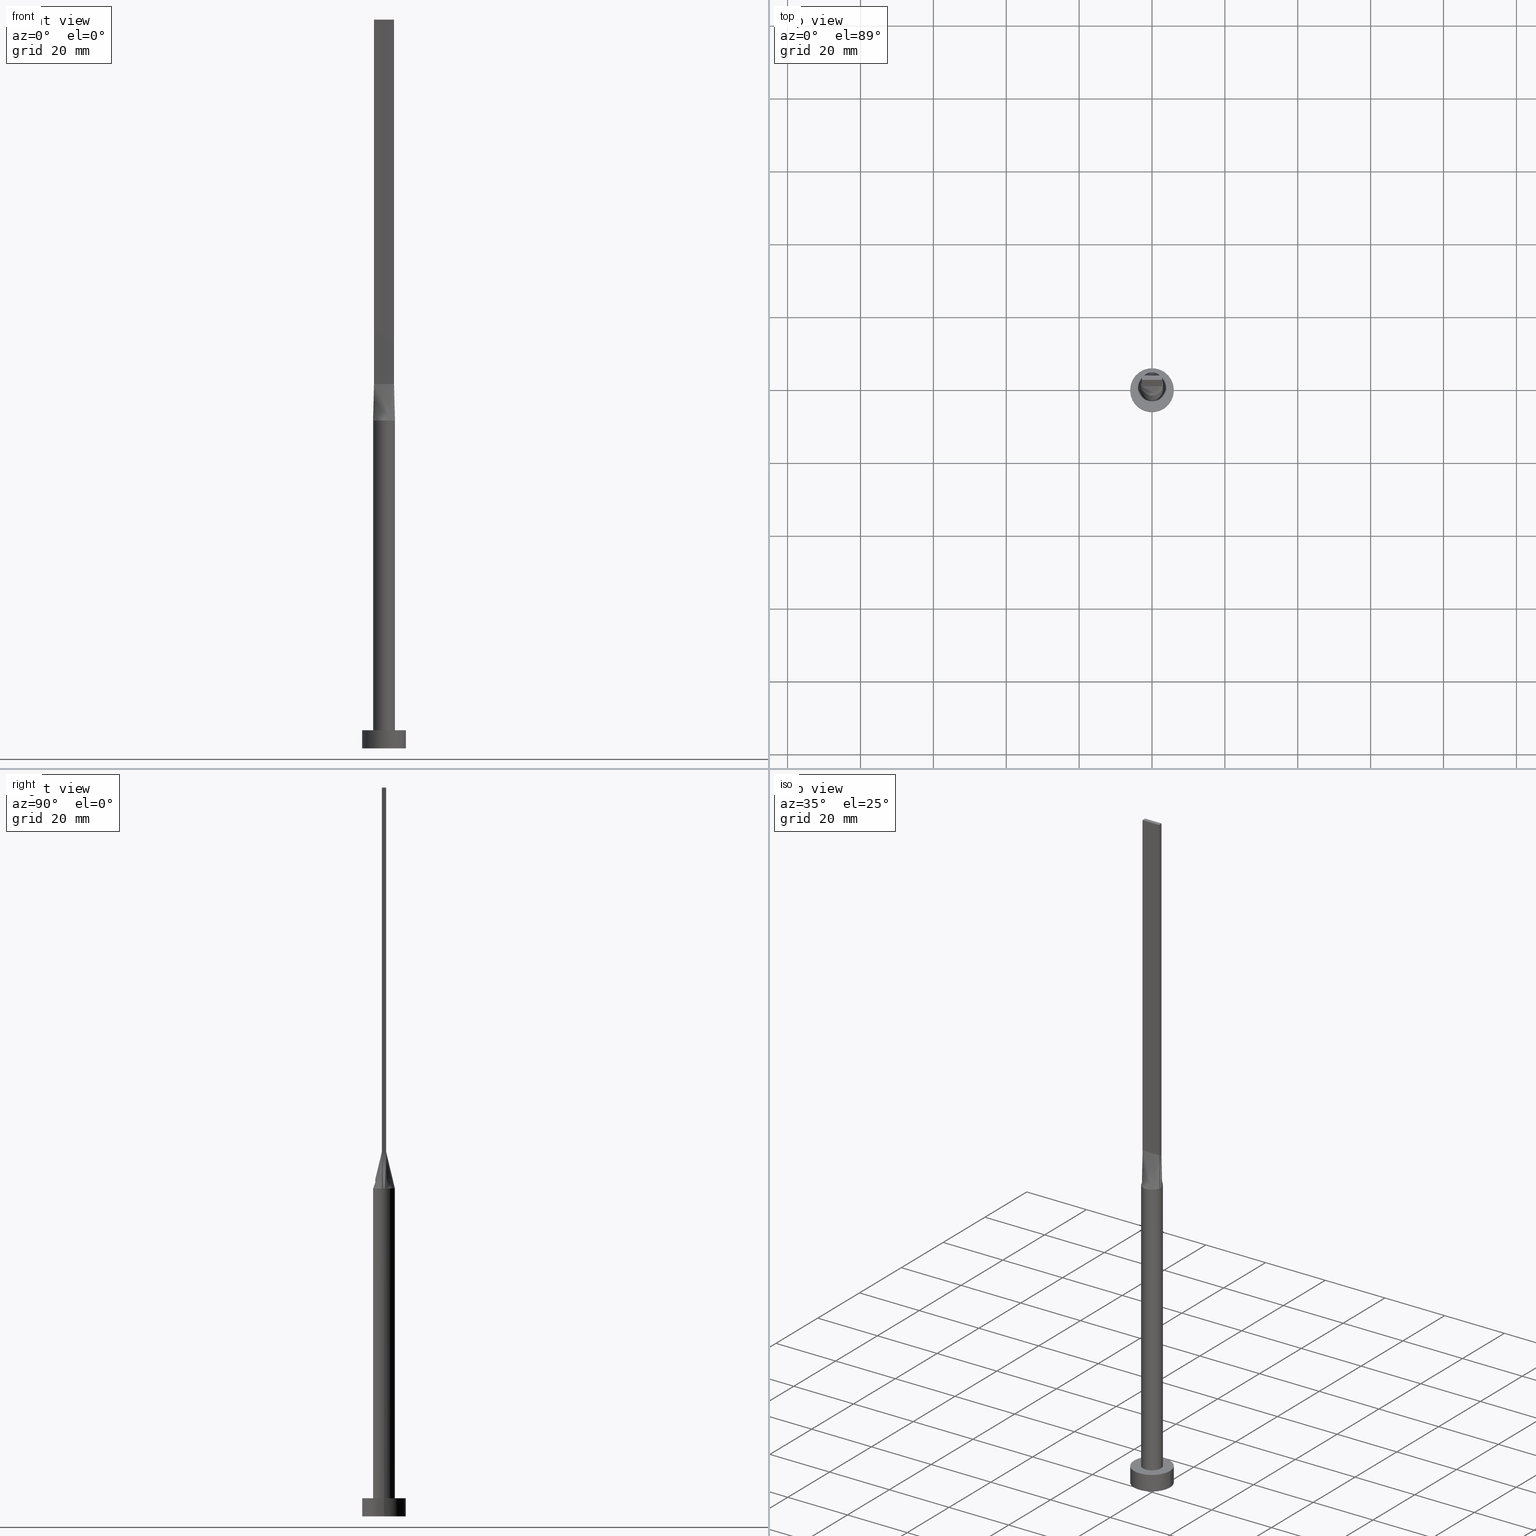
[diagram: canonical four-view strip — front | top / right | iso, engineering-drawing reading convention]
A machine part, canonical four-view strip (front | top / right | iso — engineering-drawing reading convention). The complete STEP part file that produces these views, byte-faithful:
ISO-10303-21;
HEADER;
FILE_DESCRIPTION (( 'STEP AP203' ),
    '1' );
FILE_NAME ('0f43.STEP',
    '2023-02-13T10:29:06',
    ( '' ),
    ( '' ),
    'SwSTEP 2.0',
    'SolidWorks 2019',
    '' );
FILE_SCHEMA (( 'CONFIG_CONTROL_DESIGN' ));
ENDSEC;

DATA;
#1 = CARTESIAN_POINT ( 'NONE',  ( -2.520833333333333037, -0.5999999999999994227, 100.0000000000000000 ) ) ;
#2 = CARTESIAN_POINT ( 'NONE',  ( -2.750000000000000000, -0.5999999999999995337, 100.0000000000000000 ) ) ;
#3 = EDGE_LOOP ( 'NONE', ( #144, #540, #375, #120 ) ) ;
#4 = VECTOR ( 'NONE', #331, 1000.000000000000000 ) ;
#5 = CARTESIAN_POINT ( 'NONE',  ( 0.2291666666666671015, 0.6000000000000001998, 100.0000000000000142 ) ) ;
#6 = DATE_AND_TIME ( #541, #19 ) ;
#7 = LINE ( 'NONE', #491, #161 ) ;
#8 = FACE_OUTER_BOUND ( 'NONE', #187, .T. ) ;
#9 = VECTOR ( 'NONE', #328, 1000.000000000000000 ) ;
#10 = ORIENTED_EDGE ( 'NONE', *, *, #242, .T. ) ;
#11 = CC_DESIGN_PERSON_AND_ORGANIZATION_ASSIGNMENT ( #232, #484, ( #250 ) ) ;
#12 = CARTESIAN_POINT ( 'NONE',  ( 0.000000000000000000, 0.000000000000000000, 5.000000000000000000 ) ) ;
#13 = DATE_AND_TIME ( #496, #413 ) ;
#14 = CARTESIAN_POINT ( 'NONE',  ( 2.750000000000000000, 0.4000000000000025757, 100.0000000000000000 ) ) ;
#15 = DIRECTION ( 'NONE',  ( 0.000000000000000000, -1.000000000000000000, 0.000000000000000000 ) ) ;
#16 = PERSON_AND_ORGANIZATION ( #534, #480 ) ;
#17 = VECTOR ( 'NONE', #195, 1000.000000000000000 ) ;
#18 = CARTESIAN_POINT ( 'NONE',  ( 2.750000000000000000, 0.6000000000000001998, 100.0000000000000000 ) ) ;
#19 = LOCAL_TIME ( 11, 29, 6.000000000000000000, #274 ) ;
#20 = EDGE_CURVE ( 'NONE', #503, #183, #210, .T. ) ;
#21 = ORIENTED_EDGE ( 'NONE', *, *, #40, .F. ) ;
#22 = EDGE_LOOP ( 'NONE', ( #205, #30, #518, #290 ) ) ;
#23 = DIRECTION ( 'NONE',  ( 0.000000000000000000, 0.000000000000000000, 1.000000000000000000 ) ) ;
#24 = CARTESIAN_POINT ( 'NONE',  ( 2.931047284229977290, -0.6395012256501766412, 90.00000000000001421 ) ) ;
#25 = DIRECTION ( 'NONE',  ( 0.000000000000000000, 0.000000000000000000, 1.000000000000000000 ) ) ;
#26 = EDGE_CURVE ( 'NONE', #503, #101, #431, .T. ) ;
#27 = CARTESIAN_POINT ( 'NONE',  ( 1.829136458871247761, 2.402980488111650992, 89.99999999999997158 ) ) ;
#28 = VECTOR ( 'NONE', #251, 1000.000000000000000 ) ;
#29 = CARTESIAN_POINT ( 'NONE',  ( -2.792624347712117761, 1.135030881087315313, 90.00000000000001421 ) ) ;
#30 = ORIENTED_EDGE ( 'NONE', *, *, #287, .F. ) ;
#31 = CARTESIAN_POINT ( 'NONE',  ( -2.750000000000000000, -0.5999999999999994227, 200.0000000000000000 ) ) ;
#32 = CYLINDRICAL_SURFACE ( 'NONE', #309, 3.000000000000000444 ) ;
#33 = DIRECTION ( 'NONE',  ( 0.01810162078030959007, -0.003949444533885576245, 0.9998283518749604415 ) ) ;
#34 = FACE_OUTER_BOUND ( 'NONE', #343, .T. ) ;
#35 = CARTESIAN_POINT ( 'NONE',  ( 2.518011668798964209, 1.657305971825549840, 90.00000000000001421 ) ) ;
#36 = CARTESIAN_POINT ( 'NONE',  ( 2.750000000000000000, 0.6000000000000001998, 200.0000000000000000 ) ) ;
#37 = CARTESIAN_POINT ( 'NONE',  ( -2.750000000000000000, -0.5999999999999994227, 200.0000000000000000 ) ) ;
#38 = ORIENTED_EDGE ( 'NONE', *, *, #254, .T. ) ;
#39 = CARTESIAN_POINT ( 'NONE',  ( 1.829136458871247761, 2.402980488111650992, 89.99999999999997158 ) ) ;
#40 = EDGE_CURVE ( 'NONE', #101, #460, #168, .T. ) ;
#41 = CARTESIAN_POINT ( 'NONE',  ( 2.931332910560268790, -0.6395638358681950963, 90.00000000000001421 ) ) ;
#42 = CC_DESIGN_PERSON_AND_ORGANIZATION_ASSIGNMENT ( #169, #352, ( #425 ) ) ;
#43 = AXIS2_PLACEMENT_3D ( 'NONE', #122, #478, #298 ) ;
#44 = PLANE ( 'NONE',  #260 ) ;
#45 = CALENDAR_DATE ( 2023, 13, 2 ) ;
#46 = PRODUCT ( '0f43', '0f43', '', ( #77 ) ) ;
#47 = DATE_TIME_ROLE ( 'classification_date' ) ;
#48 = CARTESIAN_POINT ( 'NONE',  ( 0.000000000000000000, 0.000000000000000000, 90.00000000000001421 ) ) ;
#49 = CARTESIAN_POINT ( 'NONE',  ( -2.931047284229977734, -0.6395012256501755310, 90.00000000000001421 ) ) ;
#50 = DIRECTION ( 'NONE',  ( -0.000000000000000000, -0.000000000000000000, -1.000000000000000000 ) ) ;
#51 = CARTESIAN_POINT ( 'NONE',  ( -2.750000000000000000, 0.6000000000000001998, 100.0000000000000000 ) ) ;
#52 = CARTESIAN_POINT ( 'NONE',  ( 3.000000000000000444, 3.673940397442060361E-16, 90.00000000000001421 ) ) ;
#53 = CARTESIAN_POINT ( 'NONE',  ( -2.518011668798964653, -1.657305971825550062, 90.00000000000000000 ) ) ;
#54 = APPROVAL_DATE_TIME ( #6, #497 ) ;
#55 = B_SPLINE_SURFACE_WITH_KNOTS ( 'NONE', 3, 1, ( 
 ( #350, #131 ),
 ( #81, #167 ),
 ( #529, #130 ),
 ( #262, #430 ),
 ( #359, #392 ),
 ( #206, #2 ) ),
 .UNSPECIFIED., .F., .F., .F.,
 ( 4, 2, 4 ),
 ( 2, 2 ),
 ( 0.000000000000000000, 0.5000000000000000000, 1.000000000000000000 ),
 ( 0.000000000000000000, 1.000000000000000000 ),
 .UNSPECIFIED. ) ;
#56 = EDGE_CURVE ( 'NONE', #305, #183, #492, .T. ) ;
#57 = CARTESIAN_POINT ( 'NONE',  ( 0.9166666666666669627, -0.5999999999999996447, 100.0000000000000000 ) ) ;
#58 = VERTEX_POINT ( 'NONE', #351 ) ;
#59 = APPLICATION_CONTEXT ( 'configuration controlled 3d designs of mechanical parts and assemblies' ) ;
#60 = AXIS2_PLACEMENT_3D ( 'NONE', #203, #384, #426 ) ;
#61 = AXIS2_PLACEMENT_3D ( 'NONE', #151, #520, #297 ) ;
#62 = VERTEX_POINT ( 'NONE', #41 ) ;
#63 =( NAMED_UNIT ( * ) SI_UNIT ( $, .STERADIAN. ) SOLID_ANGLE_UNIT ( ) );
#64 = CARTESIAN_POINT ( 'NONE',  ( 1.829136458871248205, -2.402980488111650992, 90.00000000000002842 ) ) ;
#65 = ORIENTED_EDGE ( 'NONE', *, *, #379, .T. ) ;
#66 = ADVANCED_FACE ( 'NONE', ( #573 ), #44, .F. ) ;
#67 = CARTESIAN_POINT ( 'NONE',  ( 0.000000000000000000, 0.000000000000000000, 5.000000000000000000 ) ) ;
#68 = VERTEX_POINT ( 'NONE', #300 ) ;
#69 = VECTOR ( 'NONE', #416, 1000.000000000000000 ) ;
#70 = PLANE ( 'NONE',  #302 ) ;
#71 = ORIENTED_EDGE ( 'NONE', *, *, #348, .F. ) ;
#72 = EDGE_LOOP ( 'NONE', ( #91, #533, #155, #402, #454, #118 ) ) ;
#73 = LINE ( 'NONE', #200, #4 ) ;
#74 = CARTESIAN_POINT ( 'NONE',  ( -2.328745122427008152, 1.922758842442225280, 89.99999999999997158 ) ) ;
#75 = DIRECTION ( 'NONE',  ( -0.01810162078030963170, -0.003949444533885608337, 0.9998283518749604415 ) ) ;
#76 = DIRECTION ( 'NONE',  ( 1.000000000000000000, 0.000000000000000000, 0.000000000000000000 ) ) ;
#77 = MECHANICAL_CONTEXT ( 'NONE', #98, 'mechanical' ) ;
#78 = DIRECTION ( 'NONE',  ( -1.000000000000000000, 0.000000000000000000, 0.000000000000000000 ) ) ;
#79 = ORIENTED_EDGE ( 'NONE', *, *, #417, .F. ) ;
#80 = ADVANCED_FACE ( 'NONE', ( #405 ), #577, .T. ) ;
#81 = CARTESIAN_POINT ( 'NONE',  ( -2.976487486186430331, 0.4312336333497662211, 90.00000000000001421 ) ) ;
#82 = APPLICATION_PROTOCOL_DEFINITION ( 'international standard', 'config_control_design', 1994, #59 ) ;
#83 = DIRECTION ( 'NONE',  ( 0.000000000000000000, 0.000000000000000000, 1.000000000000000000 ) ) ;
#84 = ORIENTED_EDGE ( 'NONE', *, *, #193, .F. ) ;
#85 = CARTESIAN_POINT ( 'NONE',  ( -1.829136458871247761, 2.402980488111649660, 89.99999999999998579 ) ) ;
#86 = VECTOR ( 'NONE', #255, 1000.000000000000000 ) ;
#87 = CARTESIAN_POINT ( 'NONE',  ( 6.000000000000000888, 7.347880794884120722E-16, 5.000000000000000000 ) ) ;
#88 = VERTEX_POINT ( 'NONE', #565 ) ;
#89 = CARTESIAN_POINT ( 'NONE',  ( 0.8041209001220689379, 2.916015559847871863, 90.00000000000004263 ) ) ;
#90 = PERSON_AND_ORGANIZATION_ROLE ( 'classification_officer' ) ;
#91 = ORIENTED_EDGE ( 'NONE', *, *, #566, .F. ) ;
#92 = DIRECTION ( 'NONE',  ( -1.000000000000000000, 0.000000000000000000, 0.000000000000000000 ) ) ;
#93 = VECTOR ( 'NONE', #33, 1000.000000000000000 ) ;
#94 = PLANE ( 'NONE',  #468 ) ;
#95 = CARTESIAN_POINT ( 'NONE',  ( -2.931047284229977290, 0.6395012256501755310, 90.00000000000001421 ) ) ;
#96 = CARTESIAN_POINT ( 'NONE',  ( -1.604166666666665408, -0.5999999999999994227, 100.0000000000000000 ) ) ;
#97 = APPROVAL_DATE_TIME ( #13, #401 ) ;
#98 = APPLICATION_CONTEXT ( 'configuration controlled 3d designs of mechanical parts and assemblies' ) ;
#99 = EDGE_CURVE ( 'NONE', #221, #544, #455, .T. ) ;
#100 = CARTESIAN_POINT ( 'NONE',  ( 1.145833333333333481, -0.5999999999999996447, 100.0000000000000000 ) ) ;
#101 = VERTEX_POINT ( 'NONE', #31 ) ;
#102 = DATE_AND_TIME ( #501, #499 ) ;
#103 = AXIS2_PLACEMENT_3D ( 'NONE', #112, #154, #145 ) ;
#104 = CARTESIAN_POINT ( 'NONE',  ( 2.520833333333333037, -0.5999999999999996447, 100.0000000000000000 ) ) ;
#105 = ORIENTED_EDGE ( 'NONE', *, *, #417, .T. ) ;
#106 = FACE_OUTER_BOUND ( 'NONE', #418, .T. ) ;
#107 = CIRCLE ( 'NONE', #551, 3.000000000000000444 ) ;
#108 = ORIENTED_EDGE ( 'NONE', *, *, #345, .F. ) ;
#109 = APPROVAL ( #128, 'NEUR�EN�' ) ;
#110 = FACE_OUTER_BOUND ( 'NONE', #184, .T. ) ;
#111 = ORIENTED_EDGE ( 'NONE', *, *, #362, .F. ) ;
#112 = CARTESIAN_POINT ( 'NONE',  ( 0.000000000000000000, 0.000000000000000000, 90.00000000000001421 ) ) ;
#113 = DIRECTION ( 'NONE',  ( 1.000000000000000000, 0.000000000000000000, 0.000000000000000000 ) ) ;
#114 = ORIENTED_EDGE ( 'NONE', *, *, #566, .T. ) ;
#115 = APPROVAL_PERSON_ORGANIZATION ( #434, #401, #269 ) ;
#116 = ADVANCED_FACE ( 'NONE', ( #149, #246 ), #70, .T. ) ;
#117 = CARTESIAN_POINT ( 'NONE',  ( -1.517787371616671654, 2.616501225271827380, 90.00000000000004263 ) ) ;
#118 = ORIENTED_EDGE ( 'NONE', *, *, #227, .T. ) ;
#119 = LINE ( 'NONE', #383, #560 ) ;
#120 = ORIENTED_EDGE ( 'NONE', *, *, #461, .T. ) ;
#121 = CIRCLE ( 'NONE', #429, 6.000000000000000888 ) ;
#122 = CARTESIAN_POINT ( 'NONE',  ( 0.000000000000000000, 0.000000000000000000, 200.0000000000000000 ) ) ;
#123 = CYLINDRICAL_SURFACE ( 'NONE', #60, 6.000000000000000888 ) ;
#124 = CARTESIAN_POINT ( 'NONE',  ( -2.750000000000000000, -0.5999999999999994227, 200.0000000000000000 ) ) ;
#125 = PERSON_AND_ORGANIZATION ( #534, #480 ) ;
#126 = DIRECTION ( 'NONE',  ( -1.000000000000000000, 0.000000000000000000, 0.000000000000000000 ) ) ;
#127 = CARTESIAN_POINT ( 'NONE',  ( 0.000000000000000000, 0.000000000000000000, 0.000000000000000000 ) ) ;
#128 = APPROVAL_STATUS ( 'not_yet_approved' ) ;
#129 = CARTESIAN_POINT ( 'NONE',  ( 2.792624347712116872, 1.135030881087315979, 90.00000000000001421 ) ) ;
#130 = CARTESIAN_POINT ( 'NONE',  ( -2.750000000000000000, 0.1999999999999964306, 100.0000000000000000 ) ) ;
#131 = CARTESIAN_POINT ( 'NONE',  ( -2.750000000000000000, 0.6000000000000001998, 100.0000000000000000 ) ) ;
#132 = DIRECTION ( 'NONE',  ( 1.000000000000000000, -5.913830031739115543E-17, 0.000000000000000000 ) ) ;
#133 = ORIENTED_EDGE ( 'NONE', *, *, #196, .F. ) ;
#134 = CYLINDRICAL_SURFACE ( 'NONE', #334, 3.000000000000000444 ) ;
#135 = CARTESIAN_POINT ( 'NONE',  ( -0.9166666666666661856, 0.6000000000000000888, 100.0000000000000000 ) ) ;
#136 = EDGE_CURVE ( 'NONE', #221, #68, #335, .T. ) ;
#137 = CARTESIAN_POINT ( 'NONE',  ( -1.833333333333332149, -0.5999999999999994227, 100.0000000000000000 ) ) ;
#138 = CARTESIAN_POINT ( 'NONE',  ( -1.829136458871248427, -2.402980488111649660, 90.00000000000000000 ) ) ;
#139 = ORIENTED_EDGE ( 'NONE', *, *, #510, .F. ) ;
#140 = PERSON_AND_ORGANIZATION ( #534, #480 ) ;
#141 = CARTESIAN_POINT ( 'NONE',  ( 0.000000000000000000, 0.000000000000000000, 90.00000000000001421 ) ) ;
#142 = ORIENTED_EDGE ( 'NONE', *, *, #379, .F. ) ;
#143 = CARTESIAN_POINT ( 'NONE',  ( 2.750000000000000000, 0.2000000000000038136, 100.0000000000000000 ) ) ;
#144 = ORIENTED_EDGE ( 'NONE', *, *, #282, .T. ) ;
#145 = DIRECTION ( 'NONE',  ( 1.000000000000000000, -8.881784197001252323E-15, 0.000000000000000000 ) ) ;
#146 = ORIENTED_EDGE ( 'NONE', *, *, #182, .T. ) ;
#147 = DIRECTION ( 'NONE',  ( 0.000000000000000000, 0.000000000000000000, 1.000000000000000000 ) ) ;
#148 = EDGE_CURVE ( 'NONE', #183, #460, #119, .T. ) ;
#149 = FACE_BOUND ( 'NONE', #459, .T. ) ;
#150 = CC_DESIGN_APPROVAL ( #497, ( #181 ) ) ;
#151 = CARTESIAN_POINT ( 'NONE',  ( 0.000000000000000000, 0.000000000000000000, 5.000000000000000000 ) ) ;
#152 = CARTESIAN_POINT ( 'NONE',  ( -2.750000000000000000, -0.5999999999999994227, 100.0000000000000000 ) ) ;
#153 = CARTESIAN_POINT ( 'NONE',  ( 2.750000000000000000, -0.5999999999999997558, 200.0000000000000000 ) ) ;
#154 = DIRECTION ( 'NONE',  ( 0.000000000000000000, 0.000000000000000000, 1.000000000000000000 ) ) ;
#155 = ORIENTED_EDGE ( 'NONE', *, *, #282, .F. ) ;
#156 = FACE_OUTER_BOUND ( 'NONE', #22, .T. ) ;
#157 = DIRECTION ( 'NONE',  ( -0.01810162078030963170, -0.003949444533885651705, -0.9998283518749604415 ) ) ;
#158 = DIRECTION ( 'NONE',  ( -1.000000000000000000, 5.913830031739115543E-17, 0.000000000000000000 ) ) ;
#159 = DIRECTION ( 'NONE',  ( 0.000000000000000000, 0.000000000000000000, 1.000000000000000000 ) ) ;
#160 = CARTESIAN_POINT ( 'NONE',  ( 2.520833333333333037, 0.6000000000000000888, 100.0000000000000000 ) ) ;
#161 = VECTOR ( 'NONE', #92, 1000.000000000000000 ) ;
#162 = DIRECTION ( 'NONE',  ( 0.000000000000000000, 0.000000000000000000, 1.000000000000000000 ) ) ;
#163 =( GEOMETRIC_REPRESENTATION_CONTEXT ( 3 ) GLOBAL_UNCERTAINTY_ASSIGNED_CONTEXT ( ( #207 ) ) GLOBAL_UNIT_ASSIGNED_CONTEXT ( ( #505, #329, #63 ) ) REPRESENTATION_CONTEXT ( 'NONE', 'WORKASPACE' ) );
#164 = DIRECTION ( 'NONE',  ( 0.000000000000000000, 0.000000000000000000, 1.000000000000000000 ) ) ;
#165 = APPLICATION_PROTOCOL_DEFINITION ( 'international standard', 'config_control_design', 1994, #98 ) ;
#166 = CARTESIAN_POINT ( 'NONE',  ( -0.8041209001220690489, 2.916015559847871419, 90.00000000000002842 ) ) ;
#167 = CARTESIAN_POINT ( 'NONE',  ( -2.750000000000000000, 0.3999999999999976352, 100.0000000000000000 ) ) ;
#168 = LINE ( 'NONE', #124, #458 ) ;
#169 = PERSON_AND_ORGANIZATION ( #534, #480 ) ;
#170 = CARTESIAN_POINT ( 'NONE',  ( -2.518011668798964653, 1.657305971825549840, 90.00000000000002842 ) ) ;
#171 = CARTESIAN_POINT ( 'NONE',  ( -0.4026715616377306572, -3.000000000000000000, 90.00000000000004263 ) ) ;
#172 = EDGE_CURVE ( 'NONE', #68, #305, #517, .T. ) ;
#173 = CARTESIAN_POINT ( 'NONE',  ( -2.792624347712116428, -1.135030881087314647, 90.00000000000000000 ) ) ;
#174 = ORIENTED_EDGE ( 'NONE', *, *, #461, .F. ) ;
#175 = CARTESIAN_POINT ( 'NONE',  ( -2.328745122427008152, 1.922758842442225280, 89.99999999999997158 ) ) ;
#176 = CARTESIAN_POINT ( 'NONE',  ( 0.000000000000000000, 0.000000000000000000, 90.00000000000001421 ) ) ;
#177 = DIRECTION ( 'NONE',  ( 0.000000000000000000, -0.000000000000000000, -1.000000000000000000 ) ) ;
#178 = CARTESIAN_POINT ( 'NONE',  ( 1.517787371616671876, -2.616501225271829156, 90.00000000000002842 ) ) ;
#179 = PERSON_AND_ORGANIZATION ( #534, #480 ) ;
#180 = ORIENTED_EDGE ( 'NONE', *, *, #381, .F. ) ;
#181 = SECURITY_CLASSIFICATION ( '', '', #312 ) ;
#182 = EDGE_CURVE ( 'NONE', #388, #409, #192, .T. ) ;
#183 = VERTEX_POINT ( 'NONE', #419 ) ;
#184 = EDGE_LOOP ( 'NONE', ( #279, #21, #236, #365 ) ) ;
#185 = VECTOR ( 'NONE', #385, 1000.000000000000000 ) ;
#186 = CARTESIAN_POINT ( 'NONE',  ( 2.328745122427008152, -1.922758842442226390, 89.99999999999995737 ) ) ;
#187 = EDGE_LOOP ( 'NONE', ( #105, #445, #174, #558, #84 ) ) ;
#188 = CARTESIAN_POINT ( 'NONE',  ( -2.750000000000000000, -0.5999999999999994227, 100.0000000000000000 ) ) ;
#189 = CARTESIAN_POINT ( 'NONE',  ( -0.4026715616377299356, 2.999999999999999556, 89.99999999999998579 ) ) ;
#190 = VECTOR ( 'NONE', #157, 1000.000000000000000 ) ;
#191 = ADVANCED_BREP_SHAPE_REPRESENTATION ( '0f43', ( #481, #358 ), #163 ) ;
#192 = LINE ( 'NONE', #421, #354 ) ;
#193 = EDGE_CURVE ( 'NONE', #393, #183, #519, .T. ) ;
#194 = CARTESIAN_POINT ( 'NONE',  ( 2.878980386154875060, -0.8781411751610634919, 90.00000000000001421 ) ) ;
#195 = DIRECTION ( 'NONE',  ( -0.000000000000000000, -0.000000000000000000, -1.000000000000000000 ) ) ;
#196 = EDGE_CURVE ( 'NONE', #245, #393, #280, .T. ) ;
#197 = CARTESIAN_POINT ( 'NONE',  ( 0.000000000000000000, 0.000000000000000000, 5.000000000000000000 ) ) ;
#198 = VERTEX_POINT ( 'NONE', #508 ) ;
#199 = LINE ( 'NONE', #349, #190 ) ;
#200 = CARTESIAN_POINT ( 'NONE',  ( -6.000000000000000888, 0.000000000000000000, 5.000000000000000000 ) ) ;
#201 = CC_DESIGN_PERSON_AND_ORGANIZATION_ASSIGNMENT ( #179, #532, ( #250 ) ) ;
#202 = FACE_OUTER_BOUND ( 'NONE', #268, .T. ) ;
#203 = CARTESIAN_POINT ( 'NONE',  ( 0.000000000000000000, 0.000000000000000000, 5.000000000000000000 ) ) ;
#204 = FACE_OUTER_BOUND ( 'NONE', #248, .T. ) ;
#205 = ORIENTED_EDGE ( 'NONE', *, *, #182, .F. ) ;
#206 = CARTESIAN_POINT ( 'NONE',  ( -2.931047284229977734, -0.6395012256501755310, 90.00000000000001421 ) ) ;
#207 = UNCERTAINTY_MEASURE_WITH_UNIT (LENGTH_MEASURE( 1.000000000000000082E-05 ), #505, 'distance_accuracy_value', 'NONE');
#208 = ORIENTED_EDGE ( 'NONE', *, *, #510, .T. ) ;
#209 = DIRECTION ( 'NONE',  ( 1.000000000000000000, 0.000000000000000000, 0.000000000000000000 ) ) ;
#210 = LINE ( 'NONE', #271, #465 ) ;
#211 = CARTESIAN_POINT ( 'NONE',  ( -1.145833333333332815, 0.6000000000000000888, 100.0000000000000000 ) ) ;
#212 = EDGE_CURVE ( 'NONE', #62, #58, #220, .T. ) ;
#213 = CARTESIAN_POINT ( 'NONE',  ( -0.9166666666666656305, -0.5999999999999994227, 100.0000000000000000 ) ) ;
#214 = APPROVAL_ROLE ( '' ) ;
#215 = CARTESIAN_POINT ( 'NONE',  ( -2.750000000000000000, -0.5999999999999994227, 100.0000000000000000 ) ) ;
#216 = DIRECTION ( 'NONE',  ( 1.000000000000000000, 0.000000000000000000, 0.000000000000000000 ) ) ;
#217 = ORIENTED_EDGE ( 'NONE', *, *, #263, .F. ) ;
#218 = PRODUCT_DEFINITION_SHAPE ( 'NONE', 'NONE',  #425 ) ;
#219 = CARTESIAN_POINT ( 'NONE',  ( 0.000000000000000000, 0.000000000000000000, 5.000000000000000000 ) ) ;
#220 = CIRCLE ( 'NONE', #103, 3.000000000000000444 ) ;
#221 = VERTEX_POINT ( 'NONE', #557 ) ;
#222 = DIRECTION ( 'NONE',  ( -1.000000000000000000, 0.000000000000000000, 0.000000000000000000 ) ) ;
#223 = EDGE_CURVE ( 'NONE', #456, #285, #73, .T. ) ;
#224 = AXIS2_PLACEMENT_3D ( 'NONE', #270, #256, #76 ) ;
#225 = LOCAL_TIME ( 11, 29, 6.000000000000000000, #530 ) ;
#226 = LINE ( 'NONE', #313, #412 ) ;
#227 = EDGE_CURVE ( 'NONE', #88, #330, #547, .T. ) ;
#228 = CC_DESIGN_DATE_AND_TIME_ASSIGNMENT ( #102, #47, ( #181 ) ) ;
#229 = LINE ( 'NONE', #188, #9 ) ;
#230 = CARTESIAN_POINT ( 'NONE',  ( -2.328745122427009928, -1.922758842442225058, 89.99999999999995737 ) ) ;
#231 = EDGE_LOOP ( 'NONE', ( #283, #293, #65, #346 ) ) ;
#232 = PERSON_AND_ORGANIZATION ( #534, #480 ) ;
#233 = CLOSED_SHELL ( 'NONE', ( #536, #363, #447, #116, #66, #443, #400, #80, #303, #337, #526, #528, #325, #423, #482 ) ) ;
#234 = ORIENTED_EDGE ( 'NONE', *, *, #310, .F. ) ;
#235 = CC_DESIGN_SECURITY_CLASSIFICATION ( #181, ( #250 ) ) ;
#236 = ORIENTED_EDGE ( 'NONE', *, *, #26, .F. ) ;
#237 = CARTESIAN_POINT ( 'NONE',  ( 2.999207587164657074, 0.2156168166748827775, 90.00000000000001421 ) ) ;
#238 = LINE ( 'NONE', #36, #86 ) ;
#239 = DIRECTION ( 'NONE',  ( -0.000000000000000000, -0.000000000000000000, -1.000000000000000000 ) ) ;
#240 = ORIENTED_EDGE ( 'NONE', *, *, #136, .F. ) ;
#241 = AXIS2_PLACEMENT_3D ( 'NONE', #48, #578, #387 ) ;
#242 = EDGE_CURVE ( 'NONE', #409, #285, #372, .T. ) ;
#243 = CARTESIAN_POINT ( 'NONE',  ( 2.750000000000000000, 0.6000000000000001998, 100.0000000000000000 ) ) ;
#244 = CC_DESIGN_APPROVAL ( #109, ( #425 ) ) ;
#245 = VERTEX_POINT ( 'NONE', #479 ) ;
#246 = FACE_OUTER_BOUND ( 'NONE', #327, .T. ) ;
#247 = DIRECTION ( 'NONE',  ( 0.000000000000000000, 0.000000000000000000, 1.000000000000000000 ) ) ;
#248 = EDGE_LOOP ( 'NONE', ( #406, #240, #142, #564 ) ) ;
#249 = CARTESIAN_POINT ( 'NONE',  ( -2.931320679040856803, 0.6395611071856786012, 90.00000000000001421 ) ) ;
#250 = PRODUCT_DEFINITION_FORMATION_WITH_SPECIFIED_SOURCE ( 'LIBOVOLN�', '', #46, .NOT_KNOWN. ) ;
#251 = DIRECTION ( 'NONE',  ( -0.01810162078030963170, 0.003949444533885597929, 0.9998283518749604415 ) ) ;
#252 = DIRECTION ( 'NONE',  ( 1.000000000000000000, 0.000000000000000000, 0.000000000000000000 ) ) ;
#253 = FACE_OUTER_BOUND ( 'NONE', #231, .T. ) ;
#254 = EDGE_CURVE ( 'NONE', #388, #456, #542, .T. ) ;
#255 = DIRECTION ( 'NONE',  ( -0.000000000000000000, -0.000000000000000000, -1.000000000000000000 ) ) ;
#256 = DIRECTION ( 'NONE',  ( 0.000000000000000000, 0.000000000000000000, 1.000000000000000000 ) ) ;
#257 = ORIENTED_EDGE ( 'NONE', *, *, #554, .T. ) ;
#258 = CARTESIAN_POINT ( 'NONE',  ( 0.9166666666666670737, 0.6000000000000000888, 100.0000000000000142 ) ) ;
#259 = CARTESIAN_POINT ( 'NONE',  ( 0.000000000000000000, 0.000000000000000000, 90.00000000000001421 ) ) ;
#260 = AXIS2_PLACEMENT_3D ( 'NONE', #127, #164, #525 ) ;
#261 = FACE_OUTER_BOUND ( 'NONE', #509, .T. ) ;
#262 = CARTESIAN_POINT ( 'NONE',  ( -2.999207587164656630, -0.2156168166748826387, 90.00000000000001421 ) ) ;
#263 = EDGE_CURVE ( 'NONE', #198, #88, #438, .T. ) ;
#264 = EDGE_LOOP ( 'NONE', ( #555, #257, #208, #483, #111 ) ) ;
#265 = APPROVAL_ROLE ( '' ) ;
#266 = APPROVAL_PERSON_ORGANIZATION ( #125, #109, #265 ) ;
#267 = CARTESIAN_POINT ( 'NONE',  ( -6.000000000000000888, 0.000000000000000000, 5.000000000000000000 ) ) ;
#268 = EDGE_LOOP ( 'NONE', ( #546, #71, #504, #338 ) ) ;
#269 = APPROVAL_ROLE ( '' ) ;
#270 = CARTESIAN_POINT ( 'NONE',  ( 0.000000000000000000, 0.000000000000000000, 5.000000000000000000 ) ) ;
#271 = CARTESIAN_POINT ( 'NONE',  ( -2.750000000000000000, 0.6000000000000001998, 200.0000000000000000 ) ) ;
#272 = CARTESIAN_POINT ( 'NONE',  ( 0.000000000000000000, 0.000000000000000000, 90.00000000000001421 ) ) ;
#273 = CARTESIAN_POINT ( 'NONE',  ( 1.604166666666666963, 0.6000000000000000888, 100.0000000000000000 ) ) ;
#274 = COORDINATED_UNIVERSAL_TIME_OFFSET ( 1, 0, .AHEAD. ) ;
#275 = FACE_OUTER_BOUND ( 'NONE', #3, .T. ) ;
#276 = CIRCLE ( 'NONE', #241, 3.000000000000000444 ) ;
#277 = VECTOR ( 'NONE', #50, 1000.000000000000000 ) ;
#278 = CARTESIAN_POINT ( 'NONE',  ( -1.517787371616672321, -2.616501225271827380, 90.00000000000001421 ) ) ;
#279 = ORIENTED_EDGE ( 'NONE', *, *, #148, .T. ) ;
#280 = B_SPLINE_CURVE_WITH_KNOTS ( 'NONE', 3,
 ( #333, #511, #411, #35, #561, #27, #292, #286, #380, #189, #464, #117, #339, #74, #291, #29, #462, #249 ),
 .UNSPECIFIED., .F., .F.,
 ( 4, 2, 2, 2, 2, 2, 2, 2, 4 ),
 ( 0.000000000000000000, 0.1250000000000000000, 0.2500000000000000000, 0.3750000000000000000, 0.5000000000000000000, 0.6250000000000000000, 0.7500000000000000000, 0.8750000000000000000, 1.000000000000000000 ),
 .UNSPECIFIED. ) ;
#281 = CARTESIAN_POINT ( 'NONE',  ( 2.750000000000000000, -0.5999999999999997558, 100.0000000000000000 ) ) ;
#282 = EDGE_CURVE ( 'NONE', #507, #62, #276, .T. ) ;
#283 = ORIENTED_EDGE ( 'NONE', *, *, #381, .T. ) ;
#284 = CARTESIAN_POINT ( 'NONE',  ( 2.750000000000000000, -0.1999999999999961253, 100.0000000000000000 ) ) ;
#285 = VERTEX_POINT ( 'NONE', #396 ) ;
#286 = CARTESIAN_POINT ( 'NONE',  ( 0.8041209001220689379, 2.916015559847871863, 90.00000000000004263 ) ) ;
#287 = EDGE_CURVE ( 'NONE', #456, #388, #342, .T. ) ;
#288 = DIRECTION ( 'NONE',  ( 0.000000000000000000, 0.000000000000000000, 1.000000000000000000 ) ) ;
#289 = FACE_OUTER_BOUND ( 'NONE', #72, .T. ) ;
#290 = ORIENTED_EDGE ( 'NONE', *, *, #310, .T. ) ;
#291 = CARTESIAN_POINT ( 'NONE',  ( -2.518011668798964653, 1.657305971825549840, 90.00000000000002842 ) ) ;
#292 = CARTESIAN_POINT ( 'NONE',  ( 1.517787371616672099, 2.616501225271827824, 90.00000000000004263 ) ) ;
#293 = ORIENTED_EDGE ( 'NONE', *, *, #26, .T. ) ;
#294 = AXIS2_PLACEMENT_3D ( 'NONE', #197, #147, #113 ) ;
#295 = CARTESIAN_POINT ( 'NONE',  ( 2.840523642114988867, 0.6197506128250880320, 95.00000000000000000 ) ) ;
#296 = DIRECTION ( 'NONE',  ( 0.000000000000000000, 0.000000000000000000, 1.000000000000000000 ) ) ;
#297 = DIRECTION ( 'NONE',  ( -1.000000000000000000, 0.000000000000000000, 0.000000000000000000 ) ) ;
#298 = DIRECTION ( 'NONE',  ( 1.000000000000000000, 0.000000000000000000, -0.000000000000000000 ) ) ;
#299 = EDGE_CURVE ( 'NONE', #198, #507, #373, .T. ) ;
#300 = CARTESIAN_POINT ( 'NONE',  ( 2.750000000000000000, -0.5999999999999997558, 100.0000000000000000 ) ) ;
#301 = CARTESIAN_POINT ( 'NONE',  ( 2.518011668798964209, 1.657305971825549840, 90.00000000000001421 ) ) ;
#302 = AXIS2_PLACEMENT_3D ( 'NONE', #67, #288, #374 ) ;
#303 = ADVANCED_FACE ( 'NONE', ( #8 ), #55, .T. ) ;
#304 = DIRECTION ( 'NONE',  ( 1.000000000000000000, 0.000000000000000000, 0.000000000000000000 ) ) ;
#305 = VERTEX_POINT ( 'NONE', #571 ) ;
#306 = AXIS2_PLACEMENT_3D ( 'NONE', #37, #567, #158 ) ;
#307 = DIRECTION ( 'NONE',  ( 1.000000000000000000, 0.000000000000000000, 0.000000000000000000 ) ) ;
#308 = CARTESIAN_POINT ( 'NONE',  ( -2.291666666666666519, 0.6000000000000000888, 100.0000000000000000 ) ) ;
#309 = AXIS2_PLACEMENT_3D ( 'NONE', #523, #378, #126 ) ;
#310 = EDGE_CURVE ( 'NONE', #285, #409, #121, .T. ) ;
#311 = CARTESIAN_POINT ( 'NONE',  ( -0.2291666666666664076, -0.5999999999999995337, 100.0000000000000000 ) ) ;
#312 = SECURITY_CLASSIFICATION_LEVEL ( 'unclassified' ) ;
#313 = CARTESIAN_POINT ( 'NONE',  ( -2.750000000000000000, -0.5999999999999994227, 200.0000000000000000 ) ) ;
#314 = CARTESIAN_POINT ( 'NONE',  ( 2.750000000000000000, 0.6000000000000001998, 100.0000000000000000 ) ) ;
#315 = CC_DESIGN_DATE_AND_TIME_ASSIGNMENT ( #395, #366, ( #425 ) ) ;
#316 = CARTESIAN_POINT ( 'NONE',  ( 0.8041209001220684938, -2.916015559847872751, 90.00000000000002842 ) ) ;
#317 = DIRECTION ( 'NONE',  ( 0.000000000000000000, -1.000000000000000000, 0.000000000000000000 ) ) ;
#318 = LINE ( 'NONE', #52, #277 ) ;
#319 = CARTESIAN_POINT ( 'NONE',  ( -2.878980386154874616, 0.8781411751610629368, 90.00000000000005684 ) ) ;
#320 = COORDINATED_UNIVERSAL_TIME_OFFSET ( 1, 0, .AHEAD. ) ;
#321 = AXIS2_PLACEMENT_3D ( 'NONE', #575, #78, #162 ) ;
#322 = CARTESIAN_POINT ( 'NONE',  ( 2.750000000000000000, -0.5999999999999997558, 100.0000000000000000 ) ) ;
#323 = CARTESIAN_POINT ( 'NONE',  ( -0.4583333333333328152, -0.5999999999999994227, 100.0000000000000000 ) ) ;
#324 = ORIENTED_EDGE ( 'NONE', *, *, #242, .F. ) ;
#325 = ADVANCED_FACE ( 'NONE', ( #204 ), #424, .F. ) ;
#326 = CARTESIAN_POINT ( 'NONE',  ( 1.604166666666666741, -0.5999999999999996447, 100.0000000000000000 ) ) ;
#327 = EDGE_LOOP ( 'NONE', ( #453, #38 ) ) ;
#328 = DIRECTION ( 'NONE',  ( 1.000000000000000000, -5.913830031739115543E-17, 0.000000000000000000 ) ) ;
#329 =( NAMED_UNIT ( * ) PLANE_ANGLE_UNIT ( ) SI_UNIT ( $, .RADIAN. ) );
#330 = VERTEX_POINT ( 'NONE', #341 ) ;
#331 = DIRECTION ( 'NONE',  ( -0.000000000000000000, -0.000000000000000000, -1.000000000000000000 ) ) ;
#332 = EDGE_LOOP ( 'NONE', ( #552, #513, #382, #139 ) ) ;
#333 = CARTESIAN_POINT ( 'NONE',  ( 2.931303352270923757, 0.6395574164693091923, 90.00000000000001421 ) ) ;
#334 = AXIS2_PLACEMENT_3D ( 'NONE', #272, #537, #222 ) ;
#335 = LINE ( 'NONE', #457, #17 ) ;
#336 = EDGE_LOOP ( 'NONE', ( #234, #324 ) ) ;
#337 = ADVANCED_FACE ( 'NONE', ( #522 ), #340, .T. ) ;
#338 = ORIENTED_EDGE ( 'NONE', *, *, #136, .T. ) ;
#339 = CARTESIAN_POINT ( 'NONE',  ( -1.829136458871247761, 2.402980488111649660, 89.99999999999998579 ) ) ;
#340 = B_SPLINE_SURFACE_WITH_KNOTS ( 'NONE', 3, 1, ( 
 ( #390, #314 ),
 ( #527, #160 ),
 ( #129, #437 ),
 ( #301, #360 ),
 ( #538, #273 ),
 ( #39, #433 ),
 ( #344, #258 ),
 ( #89, #428 ),
 ( #477, #5 ),
 ( #357, #574 ),
 ( #166, #347 ),
 ( #439, #135 ),
 ( #85, #211 ),
 ( #175, #398 ),
 ( #170, #353 ),
 ( #531, #308 ),
 ( #319, #488 ),
 ( #95, #51 ) ),
 .UNSPECIFIED., .F., .F., .F.,
 ( 4, 2, 2, 2, 2, 2, 2, 2, 4 ),
 ( 2, 2 ),
 ( 0.000000000000000000, 0.1250000000000000000, 0.2500000000000000000, 0.3750000000000000000, 0.5000000000000000000, 0.6250000000000000000, 0.7500000000000000000, 0.8750000000000000000, 1.000000000000000000 ),
 ( 0.000000000000000000, 1.000000000000000000 ),
 .UNSPECIFIED. ) ;
#341 = CARTESIAN_POINT ( 'NONE',  ( 3.000000000000000444, 3.673940397442060361E-16, 5.000000000000000000 ) ) ;
#342 = CIRCLE ( 'NONE', #397, 6.000000000000000888 ) ;
#343 = EDGE_LOOP ( 'NONE', ( #486, #368, #180, #568 ) ) ;
#344 = CARTESIAN_POINT ( 'NONE',  ( 1.517787371616672099, 2.616501225271827824, 90.00000000000004263 ) ) ;
#345 = EDGE_CURVE ( 'NONE', #330, #88, #441, .T. ) ;
#346 = ORIENTED_EDGE ( 'NONE', *, *, #99, .T. ) ;
#347 = CARTESIAN_POINT ( 'NONE',  ( -0.4583333333333329263, 0.6000000000000000888, 100.0000000000000000 ) ) ;
#348 = EDGE_CURVE ( 'NONE', #544, #305, #238, .T. ) ;
#349 = CARTESIAN_POINT ( 'NONE',  ( -2.840523642114988867, -0.6197506128250873658, 95.00000000000000000 ) ) ;
#350 = CARTESIAN_POINT ( 'NONE',  ( -2.931047284229977290, 0.6395012256501761971, 90.00000000000001421 ) ) ;
#351 = CARTESIAN_POINT ( 'NONE',  ( 2.999603793582328759, 7.166726372340513095E-16, 90.00000000000001421 ) ) ;
#352 = PERSON_AND_ORGANIZATION_ROLE ( 'creator' ) ;
#353 = CARTESIAN_POINT ( 'NONE',  ( -1.833333333333333037, 0.6000000000000000888, 100.0000000000000000 ) ) ;
#354 = VECTOR ( 'NONE', #239, 1000.000000000000000 ) ;
#355 = CARTESIAN_POINT ( 'NONE',  ( 0.000000000000000000, 0.000000000000000000, 0.000000000000000000 ) ) ;
#356 = PERSON_AND_ORGANIZATION_ROLE ( 'design_owner' ) ;
#357 = CARTESIAN_POINT ( 'NONE',  ( -0.4026715616377299356, 2.999999999999999556, 89.99999999999998579 ) ) ;
#358 = AXIS2_PLACEMENT_3D ( 'NONE', #473, #159, #307 ) ;
#359 = CARTESIAN_POINT ( 'NONE',  ( -2.976487486186430331, -0.4312336333497656105, 90.00000000000001421 ) ) ;
#360 = CARTESIAN_POINT ( 'NONE',  ( 1.833333333333333481, 0.6000000000000000888, 100.0000000000000000 ) ) ;
#361 = SHAPE_DEFINITION_REPRESENTATION ( #218, #191 ) ;
#362 = EDGE_CURVE ( 'NONE', #62, #68, #469, .T. ) ;
#363 = ADVANCED_FACE ( 'NONE', ( #261 ), #123, .T. ) ;
#364 = CARTESIAN_POINT ( 'NONE',  ( -2.291666666666665630, -0.5999999999999994227, 100.0000000000000000 ) ) ;
#365 = ORIENTED_EDGE ( 'NONE', *, *, #20, .T. ) ;
#366 = DATE_TIME_ROLE ( 'creation_date' ) ;
#367 = CARTESIAN_POINT ( 'NONE',  ( 2.291666666666666519, -0.5999999999999996447, 100.0000000000000000 ) ) ;
#368 = ORIENTED_EDGE ( 'NONE', *, *, #20, .F. ) ;
#369 = CARTESIAN_POINT ( 'NONE',  ( 2.976487486186430331, -0.4312336333497666652, 90.00000000000001421 ) ) ;
#370 = ORIENTED_EDGE ( 'NONE', *, *, #345, .T. ) ;
#371 = PLANE ( 'NONE',  #404 ) ;
#372 = CIRCLE ( 'NONE', #440, 6.000000000000000888 ) ;
#373 = CIRCLE ( 'NONE', #550, 3.000000000000000444 ) ;
#374 = DIRECTION ( 'NONE',  ( 1.000000000000000000, 0.000000000000000000, -0.000000000000000000 ) ) ;
#375 = ORIENTED_EDGE ( 'NONE', *, *, #576, .F. ) ;
#376 = CARTESIAN_POINT ( 'NONE',  ( -2.840523642114988423, 0.6197506128250878099, 95.00000000000000000 ) ) ;
#377 = CARTESIAN_POINT ( 'NONE',  ( 2.931047284229977734, -0.6395012256501753090, 90.00000000000001421 ) ) ;
#378 = DIRECTION ( 'NONE',  ( -0.000000000000000000, -0.000000000000000000, -1.000000000000000000 ) ) ;
#379 = EDGE_CURVE ( 'NONE', #101, #221, #226, .T. ) ;
#380 = CARTESIAN_POINT ( 'NONE',  ( 0.4026715616377294915, 2.999999999999999556, 90.00000000000001421 ) ) ;
#381 = EDGE_CURVE ( 'NONE', #544, #503, #7, .T. ) ;
#382 = ORIENTED_EDGE ( 'NONE', *, *, #56, .F. ) ;
#383 = CARTESIAN_POINT ( 'NONE',  ( -2.750000000000000000, 0.6000000000000001998, 100.0000000000000000 ) ) ;
#384 = DIRECTION ( 'NONE',  ( -0.000000000000000000, -0.000000000000000000, -1.000000000000000000 ) ) ;
#385 = DIRECTION ( 'NONE',  ( -1.000000000000000000, -0.000000000000000000, -0.000000000000000000 ) ) ;
#386 = PERSON_AND_ORGANIZATION ( #534, #480 ) ;
#387 = DIRECTION ( 'NONE',  ( 1.000000000000000000, 0.000000000000000000, 0.000000000000000000 ) ) ;
#388 = VERTEX_POINT ( 'NONE', #87 ) ;
#389 = DATE_AND_TIME ( #45, #521 ) ;
#390 = CARTESIAN_POINT ( 'NONE',  ( 2.931047284229977290, 0.6395012256501767522, 90.00000000000001421 ) ) ;
#391 = CARTESIAN_POINT ( 'NONE',  ( -2.878980386154874616, -0.8781411751610622707, 89.99999999999998579 ) ) ;
#392 = CARTESIAN_POINT ( 'NONE',  ( -2.750000000000000000, -0.4000000000000021316, 100.0000000000000000 ) ) ;
#393 = VERTEX_POINT ( 'NONE', #485 ) ;
#394 = CARTESIAN_POINT ( 'NONE',  ( 0.4026715616377293805, -3.000000000000001332, 90.00000000000002842 ) ) ;
#395 = DATE_AND_TIME ( #399, #225 ) ;
#396 = CARTESIAN_POINT ( 'NONE',  ( -6.000000000000000888, 0.000000000000000000, 0.000000000000000000 ) ) ;
#397 = AXIS2_PLACEMENT_3D ( 'NONE', #219, #475, #216 ) ;
#398 = CARTESIAN_POINT ( 'NONE',  ( -1.604166666666666297, 0.6000000000000000888, 100.0000000000000000 ) ) ;
#399 = CALENDAR_DATE ( 2023, 13, 2 ) ;
#400 = ADVANCED_FACE ( 'NONE', ( #275 ), #500, .T. ) ;
#401 = APPROVAL ( #490, 'NEUR�EN�' ) ;
#402 = ORIENTED_EDGE ( 'NONE', *, *, #299, .F. ) ;
#403 = CARTESIAN_POINT ( 'NONE',  ( 2.931047284229977734, 0.6395012256501758641, 90.00000000000001421 ) ) ;
#404 = AXIS2_PLACEMENT_3D ( 'NONE', #548, #493, #442 ) ;
#405 = FACE_OUTER_BOUND ( 'NONE', #264, .T. ) ;
#406 = ORIENTED_EDGE ( 'NONE', *, *, #576, .T. ) ;
#407 = ORIENTED_EDGE ( 'NONE', *, *, #227, .F. ) ;
#408 = CARTESIAN_POINT ( 'NONE',  ( 2.750000000000000000, 0.6000000000000001998, 200.0000000000000000 ) ) ;
#409 = VERTEX_POINT ( 'NONE', #452 ) ;
#410 = CARTESIAN_POINT ( 'NONE',  ( 2.750000000000000000, 0.6000000000000001998, 200.0000000000000000 ) ) ;
#411 = CARTESIAN_POINT ( 'NONE',  ( 2.792624347712116872, 1.135030881087315979, 90.00000000000001421 ) ) ;
#412 = VECTOR ( 'NONE', #132, 1000.000000000000000 ) ;
#413 = LOCAL_TIME ( 11, 29, 6.000000000000000000, #320 ) ;
#414 = DIRECTION ( 'NONE',  ( -0.000000000000000000, 1.000000000000000000, -0.000000000000000000 ) ) ;
#415 = CARTESIAN_POINT ( 'NONE',  ( 1.833333333333333481, -0.5999999999999996447, 100.0000000000000000 ) ) ;
#416 = DIRECTION ( 'NONE',  ( 0.000000000000000000, 1.000000000000000000, 0.000000000000000000 ) ) ;
#417 = EDGE_CURVE ( 'NONE', #393, #198, #498, .T. ) ;
#418 = EDGE_LOOP ( 'NONE', ( #449, #114, #370, #217, #79, #133 ) ) ;
#419 = CARTESIAN_POINT ( 'NONE',  ( -2.750000000000000000, 0.6000000000000001998, 100.0000000000000000 ) ) ;
#420 = LINE ( 'NONE', #295, #514 ) ;
#421 = CARTESIAN_POINT ( 'NONE',  ( 6.000000000000000888, 7.347880794884120722E-16, 5.000000000000000000 ) ) ;
#422 = PLANE ( 'NONE',  #43 ) ;
#423 = ADVANCED_FACE ( 'NONE', ( #202 ), #470, .F. ) ;
#424 = PLANE ( 'NONE',  #306 ) ;
#425 = PRODUCT_DEFINITION ( 'NEZN�M�', '', #250, #572 ) ;
#426 = DIRECTION ( 'NONE',  ( -1.000000000000000000, 0.000000000000000000, 0.000000000000000000 ) ) ;
#427 = CARTESIAN_POINT ( 'NONE',  ( -2.750000000000000000, 0.6000000000000001998, 100.0000000000000000 ) ) ;
#428 = CARTESIAN_POINT ( 'NONE',  ( 0.4583333333333337589, 0.6000000000000000888, 100.0000000000000142 ) ) ;
#429 = AXIS2_PLACEMENT_3D ( 'NONE', #355, #296, #252 ) ;
#430 = CARTESIAN_POINT ( 'NONE',  ( -2.750000000000000000, -0.2000000000000034528, 100.0000000000000000 ) ) ;
#431 = LINE ( 'NONE', #472, #495 ) ;
#432 = COORDINATED_UNIVERSAL_TIME_OFFSET ( 1, 0, .AHEAD. ) ;
#433 = CARTESIAN_POINT ( 'NONE',  ( 1.145833333333333703, 0.6000000000000000888, 100.0000000000000142 ) ) ;
#434 = PERSON_AND_ORGANIZATION ( #534, #480 ) ;
#435 = DIRECTION ( 'NONE',  ( -0.000000000000000000, -0.000000000000000000, -1.000000000000000000 ) ) ;
#436 = DIRECTION ( 'NONE',  ( -0.000000000000000000, -0.000000000000000000, -1.000000000000000000 ) ) ;
#437 = CARTESIAN_POINT ( 'NONE',  ( 2.291666666666666519, 0.6000000000000000888, 100.0000000000000000 ) ) ;
#438 = LINE ( 'NONE', #524, #451 ) ;
#439 = CARTESIAN_POINT ( 'NONE',  ( -1.517787371616671654, 2.616501225271827380, 90.00000000000004263 ) ) ;
#440 = AXIS2_PLACEMENT_3D ( 'NONE', #563, #471, #304 ) ;
#441 = CIRCLE ( 'NONE', #512, 3.000000000000000444 ) ;
#442 = DIRECTION ( 'NONE',  ( -0.000000000000000000, 0.000000000000000000, -1.000000000000000000 ) ) ;
#443 = ADVANCED_FACE ( 'NONE', ( #289 ), #32, .T. ) ;
#444 = PRODUCT_RELATED_PRODUCT_CATEGORY ( 'detail', '', ( #46 ) ) ;
#445 = ORIENTED_EDGE ( 'NONE', *, *, #299, .T. ) ;
#446 = APPROVAL_STATUS ( 'not_yet_approved' ) ;
#447 = ADVANCED_FACE ( 'NONE', ( #156 ), #562, .T. ) ;
#448 = CARTESIAN_POINT ( 'NONE',  ( 2.750000000000000000, -0.3999999999999973022, 100.0000000000000000 ) ) ;
#449 = ORIENTED_EDGE ( 'NONE', *, *, #554, .F. ) ;
#450 = VECTOR ( 'NONE', #414, 1000.000000000000000 ) ;
#451 = VECTOR ( 'NONE', #435, 1000.000000000000000 ) ;
#452 = CARTESIAN_POINT ( 'NONE',  ( 6.000000000000000888, 7.347880794884120722E-16, 0.000000000000000000 ) ) ;
#453 = ORIENTED_EDGE ( 'NONE', *, *, #287, .T. ) ;
#454 = ORIENTED_EDGE ( 'NONE', *, *, #263, .T. ) ;
#455 = LINE ( 'NONE', #153, #69 ) ;
#456 = VERTEX_POINT ( 'NONE', #267 ) ;
#457 = CARTESIAN_POINT ( 'NONE',  ( 2.750000000000000000, -0.5999999999999997558, 200.0000000000000000 ) ) ;
#458 = VECTOR ( 'NONE', #436, 1000.000000000000000 ) ;
#459 = EDGE_LOOP ( 'NONE', ( #407, #108 ) ) ;
#460 = VERTEX_POINT ( 'NONE', #152 ) ;
#461 = EDGE_CURVE ( 'NONE', #460, #507, #199, .T. ) ;
#462 = CARTESIAN_POINT ( 'NONE',  ( -2.878980386154874616, 0.8781411751610629368, 90.00000000000005684 ) ) ;
#463 = CARTESIAN_POINT ( 'NONE',  ( -2.931315536094174057, -0.6395601373676296220, 90.00000000000001421 ) ) ;
#464 = CARTESIAN_POINT ( 'NONE',  ( -0.8041209001220690489, 2.916015559847871419, 90.00000000000002842 ) ) ;
#465 = VECTOR ( 'NONE', #579, 1000.000000000000000 ) ;
#466 = DIRECTION ( 'NONE',  ( 1.000000000000000000, 0.000000000000000000, 0.000000000000000000 ) ) ;
#467 = CC_DESIGN_PERSON_AND_ORGANIZATION_ASSIGNMENT ( #140, #90, ( #181 ) ) ;
#468 = AXIS2_PLACEMENT_3D ( 'NONE', #410, #15, #177 ) ;
#469 = LINE ( 'NONE', #474, #28 ) ;
#470 = PLANE ( 'NONE',  #321 ) ;
#471 = DIRECTION ( 'NONE',  ( 0.000000000000000000, 0.000000000000000000, 1.000000000000000000 ) ) ;
#472 = CARTESIAN_POINT ( 'NONE',  ( -2.750000000000000000, 0.6000000000000001998, 200.0000000000000000 ) ) ;
#473 = CARTESIAN_POINT ( 'NONE',  ( 0.000000000000000000, 0.000000000000000000, 0.000000000000000000 ) ) ;
#474 = CARTESIAN_POINT ( 'NONE',  ( 2.840523642114988867, -0.6197506128250874768, 95.00000000000000000 ) ) ;
#475 = DIRECTION ( 'NONE',  ( 0.000000000000000000, 0.000000000000000000, 1.000000000000000000 ) ) ;
#476 = ORIENTED_EDGE ( 'NONE', *, *, #254, .F. ) ;
#477 = CARTESIAN_POINT ( 'NONE',  ( 0.4026715616377294915, 2.999999999999999556, 90.00000000000001421 ) ) ;
#478 = DIRECTION ( 'NONE',  ( 0.000000000000000000, 0.000000000000000000, 1.000000000000000000 ) ) ;
#479 = CARTESIAN_POINT ( 'NONE',  ( 2.931303352270923757, 0.6395574164693091923, 90.00000000000001421 ) ) ;
#480 = ORGANIZATION ( 'NEUR�EN�', 'NEUR�EN�', '' ) ;
#481 = MANIFOLD_SOLID_BREP ( 'P�idat vysunut�m5', #233 ) ;
#482 = ADVANCED_FACE ( 'NONE', ( #253 ), #422, .T. ) ;
#483 = ORIENTED_EDGE ( 'NONE', *, *, #172, .F. ) ;
#484 = PERSON_AND_ORGANIZATION_ROLE ( 'design_supplier' ) ;
#485 = CARTESIAN_POINT ( 'NONE',  ( -2.931320679040856803, 0.6395611071856786012, 90.00000000000001421 ) ) ;
#486 = ORIENTED_EDGE ( 'NONE', *, *, #56, .T. ) ;
#487 = DIRECTION ( 'NONE',  ( 1.000000000000000000, 0.000000000000000000, 0.000000000000000000 ) ) ;
#488 = CARTESIAN_POINT ( 'NONE',  ( -2.520833333333333037, 0.6000000000000000888, 100.0000000000000000 ) ) ;
#489 = CARTESIAN_POINT ( 'NONE',  ( 0.4583333333333337034, -0.5999999999999995337, 100.0000000000000000 ) ) ;
#490 = APPROVAL_STATUS ( 'not_yet_approved' ) ;
#491 = CARTESIAN_POINT ( 'NONE',  ( 2.750000000000000000, 0.6000000000000001998, 200.0000000000000000 ) ) ;
#492 = LINE ( 'NONE', #427, #185 ) ;
#493 = DIRECTION ( 'NONE',  ( 1.000000000000000000, 0.000000000000000000, -0.000000000000000000 ) ) ;
#494 = CARTESIAN_POINT ( 'NONE',  ( 0.2291666666666668517, -0.5999999999999995337, 100.0000000000000000 ) ) ;
#495 = VECTOR ( 'NONE', #317, 1000.000000000000000 ) ;
#496 = CALENDAR_DATE ( 2023, 13, 2 ) ;
#497 = APPROVAL ( #446, 'NEUR�EN�' ) ;
#498 = CIRCLE ( 'NONE', #569, 3.000000000000000444 ) ;
#499 = LOCAL_TIME ( 11, 29, 6.000000000000000000, #545 ) ;
#500 = B_SPLINE_SURFACE_WITH_KNOTS ( 'NONE', 3, 1, ( 
 ( #49, #215 ),
 ( #391, #1 ),
 ( #173, #364 ),
 ( #53, #137 ),
 ( #230, #96 ),
 ( #138, #539 ),
 ( #278, #213 ),
 ( #581, #323 ),
 ( #171, #311 ),
 ( #394, #494 ),
 ( #316, #489 ),
 ( #178, #57 ),
 ( #64, #100 ),
 ( #186, #326 ),
 ( #559, #415 ),
 ( #502, #367 ),
 ( #194, #104 ),
 ( #377, #281 ) ),
 .UNSPECIFIED., .F., .F., .F.,
 ( 4, 2, 2, 2, 2, 2, 2, 2, 4 ),
 ( 2, 2 ),
 ( 0.000000000000000000, 0.1250000000000000833, 0.2500000000000001665, 0.3750000000000001110, 0.5000000000000001110, 0.6250000000000001110, 0.7500000000000000000, 0.8750000000000000000, 1.000000000000000000 ),
 ( 0.000000000000000000, 1.000000000000000000 ),
 .UNSPECIFIED. ) ;
#501 = CALENDAR_DATE ( 2023, 13, 2 ) ;
#502 = CARTESIAN_POINT ( 'NONE',  ( 2.792624347712116872, -1.135030881087315757, 90.00000000000002842 ) ) ;
#503 = VERTEX_POINT ( 'NONE', #516 ) ;
#504 = ORIENTED_EDGE ( 'NONE', *, *, #99, .F. ) ;
#505 =( LENGTH_UNIT ( ) NAMED_UNIT ( * ) SI_UNIT ( .MILLI., .METRE. ) );
#506 = CARTESIAN_POINT ( 'NONE',  ( 2.976487486186430331, 0.4312336333497658880, 90.00000000000001421 ) ) ;
#507 = VERTEX_POINT ( 'NONE', #463 ) ;
#508 = CARTESIAN_POINT ( 'NONE',  ( -2.999603793582328315, -7.025298958605770567E-16, 90.00000000000001421 ) ) ;
#509 = EDGE_LOOP ( 'NONE', ( #476, #146, #10, #535 ) ) ;
#510 = EDGE_CURVE ( 'NONE', #245, #305, #420, .T. ) ;
#511 = CARTESIAN_POINT ( 'NONE',  ( 2.878980386154874616, 0.8781411751610636029, 90.00000000000002842 ) ) ;
#512 = AXIS2_PLACEMENT_3D ( 'NONE', #12, #23, #515 ) ;
#513 = ORIENTED_EDGE ( 'NONE', *, *, #193, .T. ) ;
#514 = VECTOR ( 'NONE', #75, 1000.000000000000000 ) ;
#515 = DIRECTION ( 'NONE',  ( 1.000000000000000000, 0.000000000000000000, 0.000000000000000000 ) ) ;
#516 = CARTESIAN_POINT ( 'NONE',  ( -2.750000000000000000, 0.6000000000000001998, 200.0000000000000000 ) ) ;
#517 = LINE ( 'NONE', #243, #450 ) ;
#518 = ORIENTED_EDGE ( 'NONE', *, *, #223, .T. ) ;
#519 = LINE ( 'NONE', #376, #93 ) ;
#520 = DIRECTION ( 'NONE',  ( -0.000000000000000000, -0.000000000000000000, -1.000000000000000000 ) ) ;
#521 = LOCAL_TIME ( 11, 29, 6.000000000000000000, #432 ) ;
#522 = FACE_OUTER_BOUND ( 'NONE', #332, .T. ) ;
#523 = CARTESIAN_POINT ( 'NONE',  ( 0.000000000000000000, 0.000000000000000000, 90.00000000000001421 ) ) ;
#524 = CARTESIAN_POINT ( 'NONE',  ( -3.000000000000000444, 0.000000000000000000, 90.00000000000001421 ) ) ;
#525 = DIRECTION ( 'NONE',  ( 1.000000000000000000, 0.000000000000000000, -0.000000000000000000 ) ) ;
#526 = ADVANCED_FACE ( 'NONE', ( #34 ), #94, .F. ) ;
#527 = CARTESIAN_POINT ( 'NONE',  ( 2.878980386154874616, 0.8781411751610636029, 90.00000000000002842 ) ) ;
#528 = ADVANCED_FACE ( 'NONE', ( #110 ), #371, .F. ) ;
#529 = CARTESIAN_POINT ( 'NONE',  ( -2.999207587164656630, 0.2156168166748832771, 90.00000000000001421 ) ) ;
#530 = COORDINATED_UNIVERSAL_TIME_OFFSET ( 1, 0, .AHEAD. ) ;
#531 = CARTESIAN_POINT ( 'NONE',  ( -2.792624347712117761, 1.135030881087315313, 90.00000000000001421 ) ) ;
#532 = PERSON_AND_ORGANIZATION_ROLE ( 'creator' ) ;
#533 = ORIENTED_EDGE ( 'NONE', *, *, #212, .F. ) ;
#534 = PERSON ( 'NEUR�EN�', 'NEUR�EN�', 'NEUR�EN�', ('NEUR�EN�'), ('NEUR�EN�'), ('NEUR�EN�') ) ;
#535 = ORIENTED_EDGE ( 'NONE', *, *, #223, .F. ) ;
#536 = ADVANCED_FACE ( 'NONE', ( #106 ), #134, .T. ) ;
#537 = DIRECTION ( 'NONE',  ( -0.000000000000000000, -0.000000000000000000, -1.000000000000000000 ) ) ;
#538 = CARTESIAN_POINT ( 'NONE',  ( 2.328745122427009040, 1.922758842442225946, 90.00000000000000000 ) ) ;
#539 = CARTESIAN_POINT ( 'NONE',  ( -1.145833333333332149, -0.5999999999999994227, 100.0000000000000000 ) ) ;
#540 = ORIENTED_EDGE ( 'NONE', *, *, #362, .T. ) ;
#541 = CALENDAR_DATE ( 2023, 13, 2 ) ;
#542 = CIRCLE ( 'NONE', #224, 6.000000000000000888 ) ;
#543 = CC_DESIGN_APPROVAL ( #401, ( #250 ) ) ;
#544 = VERTEX_POINT ( 'NONE', #408 ) ;
#545 = COORDINATED_UNIVERSAL_TIME_OFFSET ( 1, 0, .AHEAD. ) ;
#546 = ORIENTED_EDGE ( 'NONE', *, *, #172, .T. ) ;
#547 = CIRCLE ( 'NONE', #294, 3.000000000000000444 ) ;
#548 = CARTESIAN_POINT ( 'NONE',  ( -2.750000000000000000, 0.6000000000000001998, 200.0000000000000000 ) ) ;
#549 = CARTESIAN_POINT ( 'NONE',  ( 2.999207587164657074, -0.2156168166748835269, 90.00000000000001421 ) ) ;
#550 = AXIS2_PLACEMENT_3D ( 'NONE', #176, #83, #209 ) ;
#551 = AXIS2_PLACEMENT_3D ( 'NONE', #141, #25, #487 ) ;
#552 = ORIENTED_EDGE ( 'NONE', *, *, #196, .T. ) ;
#553 = DIRECTION ( 'NONE',  ( 0.000000000000000000, -1.000000000000000000, 0.000000000000000000 ) ) ;
#554 = EDGE_CURVE ( 'NONE', #58, #245, #107, .T. ) ;
#555 = ORIENTED_EDGE ( 'NONE', *, *, #212, .T. ) ;
#556 = CC_DESIGN_PERSON_AND_ORGANIZATION_ASSIGNMENT ( #386, #356, ( #46 ) ) ;
#557 = CARTESIAN_POINT ( 'NONE',  ( 2.750000000000000000, -0.5999999999999997558, 200.0000000000000000 ) ) ;
#558 = ORIENTED_EDGE ( 'NONE', *, *, #148, .F. ) ;
#559 = CARTESIAN_POINT ( 'NONE',  ( 2.518011668798964209, -1.657305971825550506, 90.00000000000002842 ) ) ;
#560 = VECTOR ( 'NONE', #553, 1000.000000000000000 ) ;
#561 = CARTESIAN_POINT ( 'NONE',  ( 2.328745122427009040, 1.922758842442225946, 90.00000000000000000 ) ) ;
#562 = CYLINDRICAL_SURFACE ( 'NONE', #61, 6.000000000000000888 ) ;
#563 = CARTESIAN_POINT ( 'NONE',  ( 0.000000000000000000, 0.000000000000000000, 0.000000000000000000 ) ) ;
#564 = ORIENTED_EDGE ( 'NONE', *, *, #40, .T. ) ;
#565 = CARTESIAN_POINT ( 'NONE',  ( -3.000000000000000444, 0.000000000000000000, 5.000000000000000000 ) ) ;
#566 = EDGE_CURVE ( 'NONE', #58, #330, #318, .T. ) ;
#567 = DIRECTION ( 'NONE',  ( 5.913830031739115543E-17, 1.000000000000000000, -0.000000000000000000 ) ) ;
#568 = ORIENTED_EDGE ( 'NONE', *, *, #348, .T. ) ;
#569 = AXIS2_PLACEMENT_3D ( 'NONE', #259, #247, #466 ) ;
#570 = APPROVAL_PERSON_ORGANIZATION ( #16, #497, #214 ) ;
#571 = CARTESIAN_POINT ( 'NONE',  ( 2.750000000000000000, 0.6000000000000001998, 100.0000000000000000 ) ) ;
#572 = DESIGN_CONTEXT ( 'detailed design', #59, 'design' ) ;
#573 = FACE_OUTER_BOUND ( 'NONE', #336, .T. ) ;
#574 = CARTESIAN_POINT ( 'NONE',  ( -0.2291666666666662688, 0.6000000000000000888, 100.0000000000000142 ) ) ;
#575 = CARTESIAN_POINT ( 'NONE',  ( 2.750000000000000000, -0.5999999999999997558, 200.0000000000000000 ) ) ;
#576 = EDGE_CURVE ( 'NONE', #460, #68, #229, .T. ) ;
#577 = B_SPLINE_SURFACE_WITH_KNOTS ( 'NONE', 3, 1, ( 
 ( #24, #322 ),
 ( #369, #448 ),
 ( #549, #284 ),
 ( #237, #143 ),
 ( #506, #14 ),
 ( #403, #18 ) ),
 .UNSPECIFIED., .F., .F., .F.,
 ( 4, 2, 4 ),
 ( 2, 2 ),
 ( 0.000000000000000000, 0.5000000000000000000, 1.000000000000000000 ),
 ( 0.000000000000000000, 1.000000000000000000 ),
 .UNSPECIFIED. ) ;
#578 = DIRECTION ( 'NONE',  ( 0.000000000000000000, 0.000000000000000000, 1.000000000000000000 ) ) ;
#579 = DIRECTION ( 'NONE',  ( -0.000000000000000000, -0.000000000000000000, -1.000000000000000000 ) ) ;
#580 = APPROVAL_DATE_TIME ( #389, #109 ) ;
#581 = CARTESIAN_POINT ( 'NONE',  ( -0.8041209001220698260, -2.916015559847872307, 90.00000000000002842 ) ) ;
ENDSEC;
END-ISO-10303-21;
